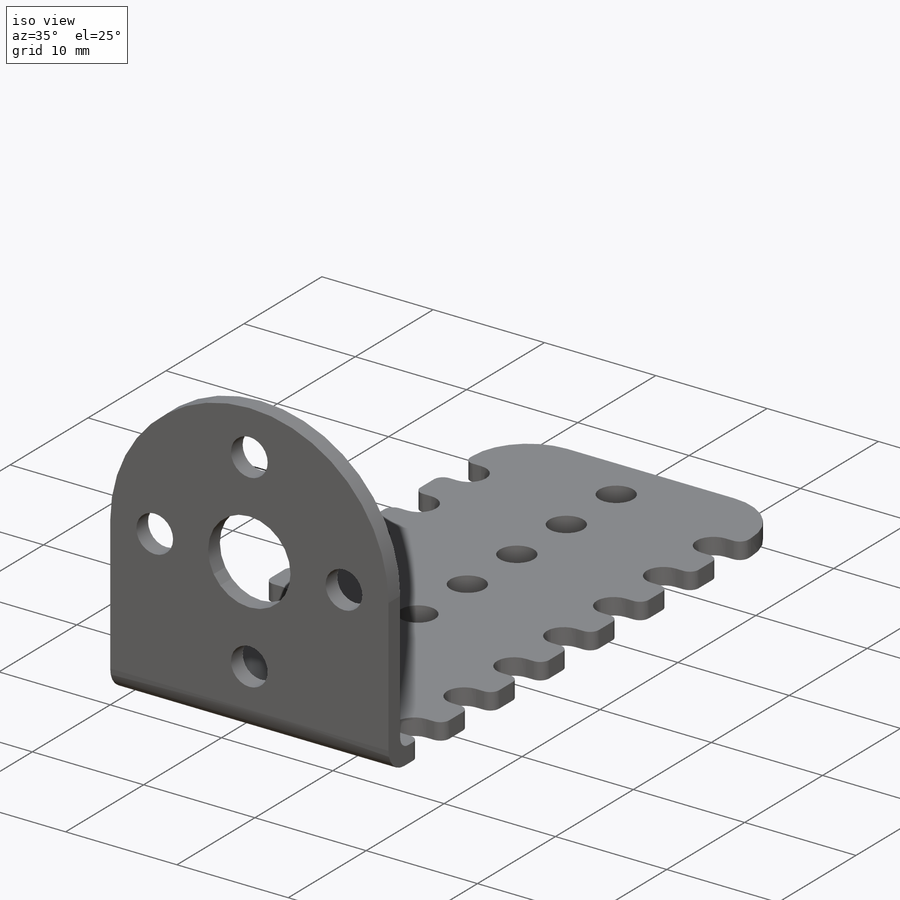
[diagram: iso view]
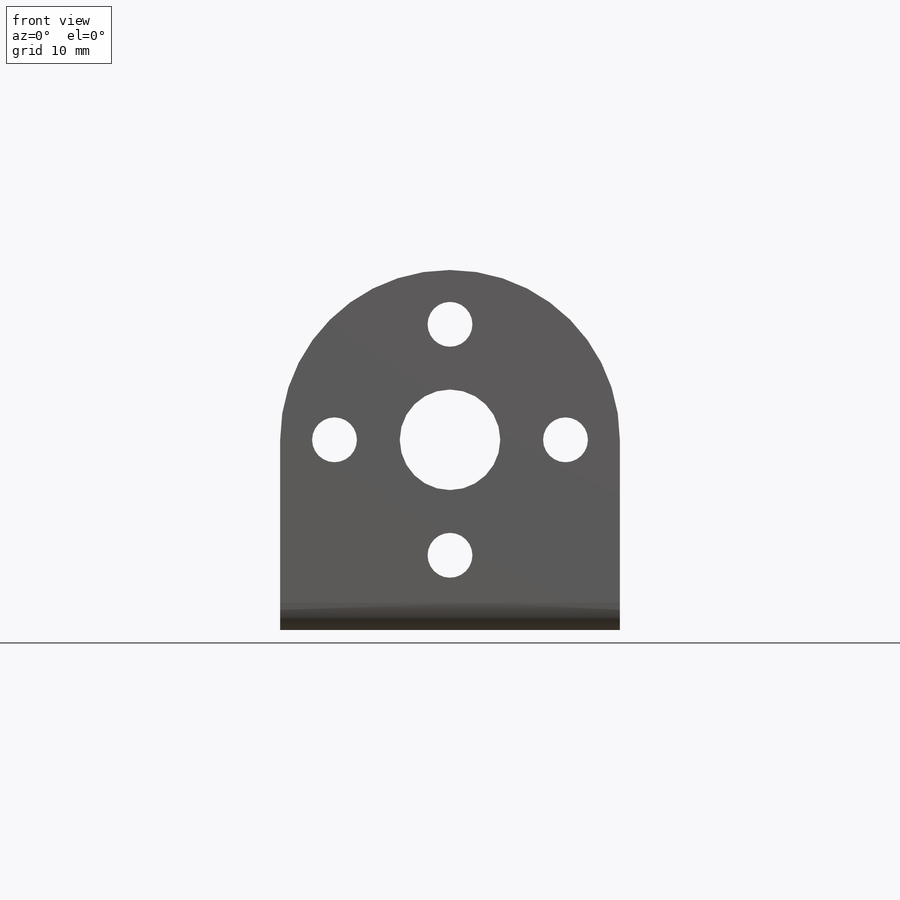
[diagram: front view]
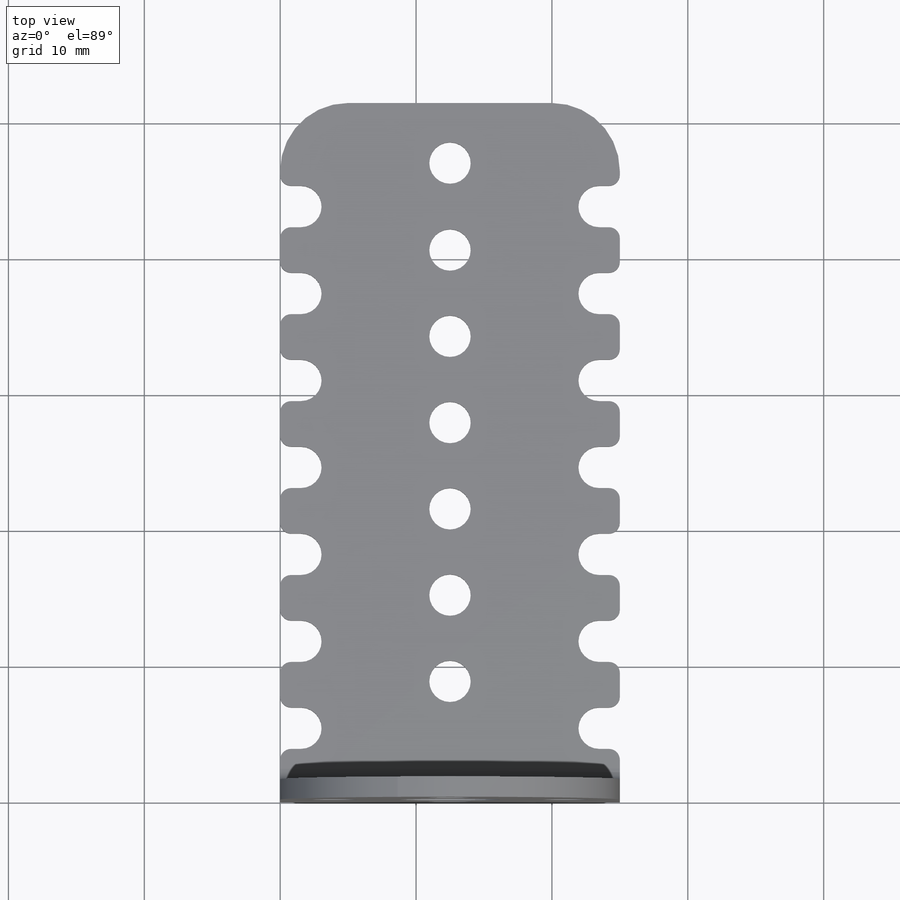
[diagram: top view]
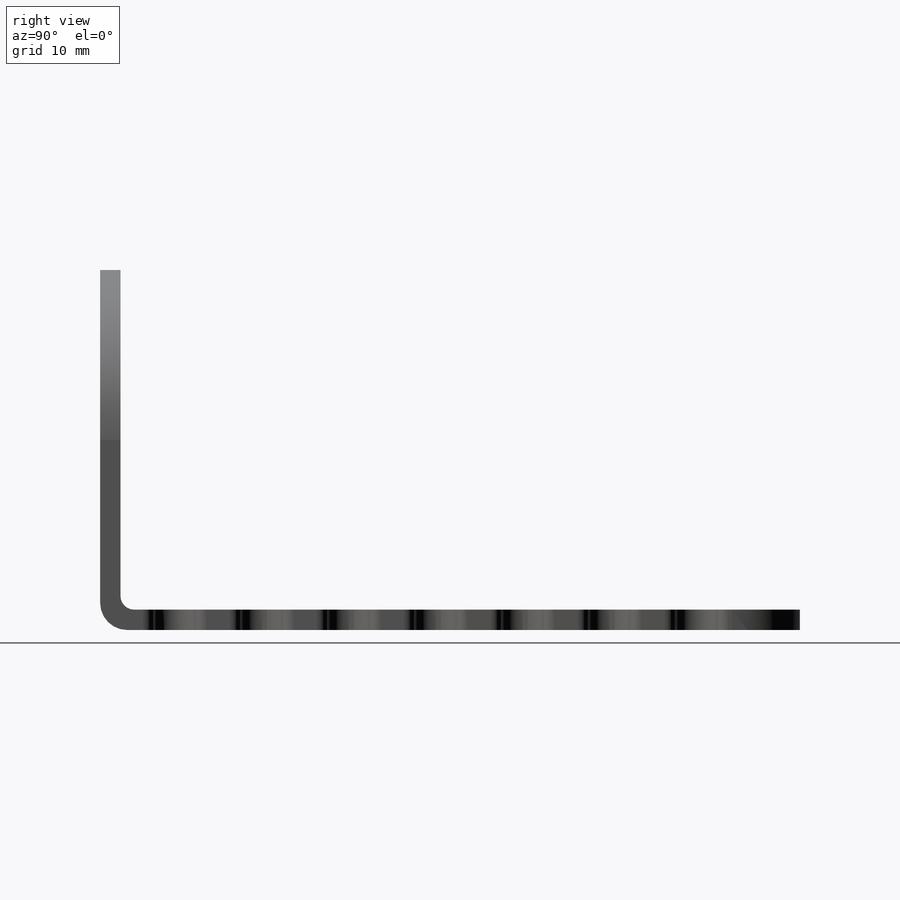
[diagram: right view]
SOLIDWORKS PART (.sldprt)
format: sldprt  version: not decoded by parser v0  size: 361,472 bytes
history: native  units: mm
features: sketch x4, plane x3, fillet x3, extrude x2, cut_extrude x2, material x1 (+13 scaffold rows collapsed)
feature tree (28):
  scaffold x13  (default folders/planes/origin — collapsed)
  material  "AISI 1010 Aço, barra laminada a quente"
  plane  "Plano frontal"
  plane  "Plano superior"
  plane  "Plano direito"
  sketch  "Esboço1"  dims[D1=51.5mm D2=25.0mm]
  extrude  "Ressalto-extrusão1"  Depth=1.5mm
  sketch  "Esboço4"  dims[D1=1.5mm]
  extrude  "Ressalto-extrusão2"  Depth=25mm
  sketch  "Esboço5"  dims[D1=7.4mm D2=3.3mm D3=8.5mm D4=4.0]
  cut_extrude  "Corte-extrusão1"  Depth=25mm
  sketch  "Esboço7"  dims[c1.D1=3.048mm c1.D3=0.8mm c1.D4=0.8mm c1.D6=3.048mm c1.D2=7.62mm c1.D7=~10.549364mm c1.D5=7.0 c2.D7=6.0 c2.D8=2.0]
  cut_extrude  "Corte-extrusão2"  Depth=25mm
  fillet  "Filete1"  Radius=5mm
  fillet  "Filete2"  Radius=2mm
  fillet  "Filete3"  Radius=1mm
decode coverage: 11 of 11 modeling features carry decoded parameters
note: ~ marks probable driven/reference dimensions
note: suppression state not decoded; provenance and decode notes live in map.json
